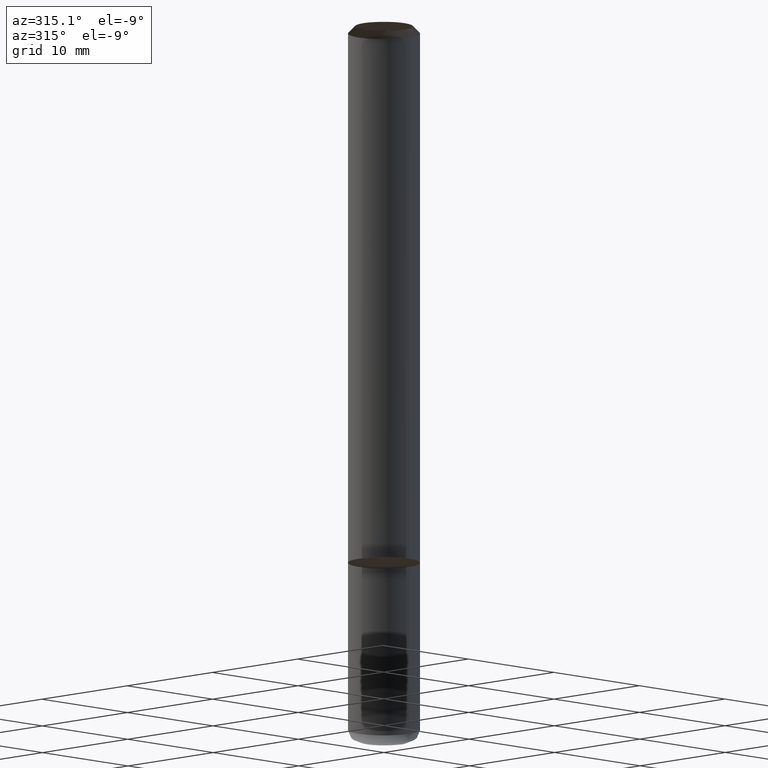
[diagram: clean part render]
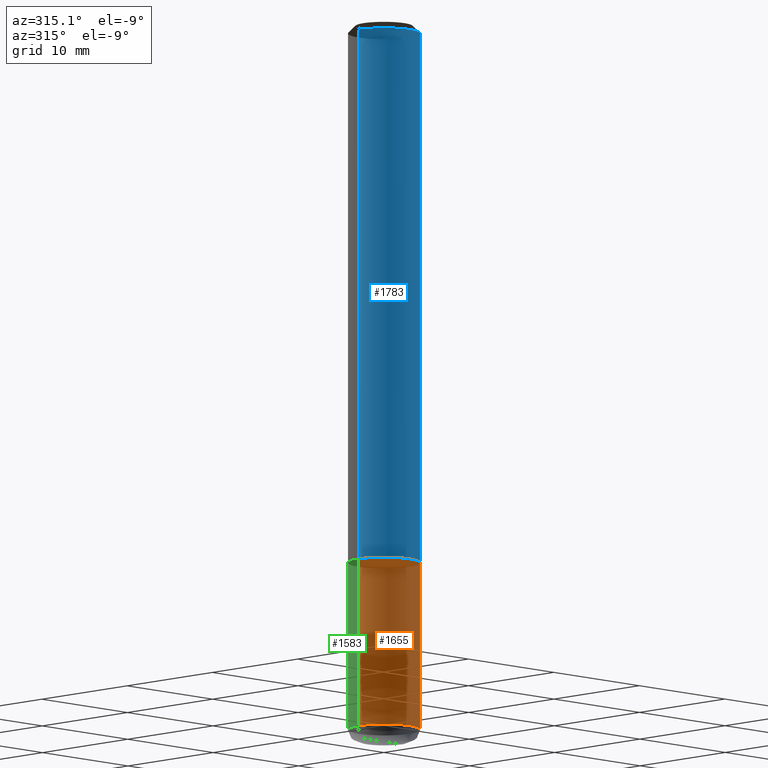
[diagram: same view with three faces highlighted in distinct colors, each labeled with its STEP entity id]
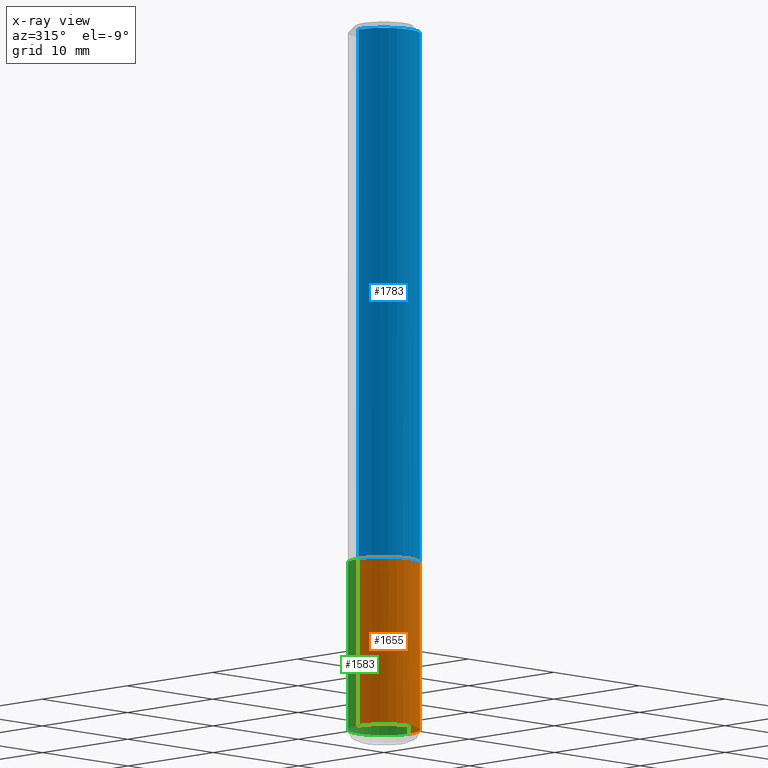
[diagram: x-ray of the same camera — body ghosted, the three highlighted faces saturated]
A machine part, auxiliary view with three faces highlighted in distinct colors.
The next image is the same camera in x-ray (body ghosted, the three faces saturated) — at least one of them is partly hidden behind the body in this view.
Their STEP definitions:

[orange] entity #1655 — the highlighted face is a freeform B-spline surface patch.
#1473=CARTESIAN_POINT('',(3.0,0.0,-14.0));
#1477=CARTESIAN_POINT('',(-3.0,0.0,-14.0));
#1478=CARTESIAN_POINT('',(3.0,0.0,0.0));
#1482=CARTESIAN_POINT('',(-3.0,0.0,0.0));
#1496=CARTESIAN_POINT('',(-3.0,-3.0,-14.0));
#1497=CARTESIAN_POINT('',(0.0,-3.0,-14.0));
#1498=CARTESIAN_POINT('',(3.0,-3.0,-14.0));
#1499=CARTESIAN_POINT('',(-3.0,-3.0,0.0));
#1500=CARTESIAN_POINT('',(0.0,-3.0,0.0));
#1501=CARTESIAN_POINT('',(3.0,-3.0,0.0));
#1636=(
BOUNDED_SURFACE()
B_SPLINE_SURFACE(1,2,(
(#1477,#1496,#1497,#1498,#1473),
(#1482,#1499,#1500,#1501,#1478)
), .UNSPECIFIED.,.F.,.F.,.F.)
B_SPLINE_SURFACE_WITH_KNOTS((2,2),(3,2,3),(
0.0,1.0),(
0.0,0.5,1.0), .UNSPECIFIED.)
GEOMETRIC_REPRESENTATION_ITEM()
RATIONAL_B_SPLINE_SURFACE(((1.0,0.707106781187,1.0,0.707106781187,1.0),
(1.0,0.707106781187,1.0,0.707106781187,1.0)
))
REPRESENTATION_ITEM('')
SURFACE()
);
#1637=(
BOUNDED_CURVE()
B_SPLINE_CURVE(1,(#1482,#1477),.UNSPECIFIED.,.F.,.F.)
B_SPLINE_CURVE_WITH_KNOTS((2,2),
(0.0,1.0),.UNSPECIFIED.)
CURVE()
GEOMETRIC_REPRESENTATION_ITEM()
RATIONAL_B_SPLINE_CURVE((1.0,1.0))
REPRESENTATION_ITEM('')
);
#1638=(
BOUNDED_CURVE()
B_SPLINE_CURVE(2,(#1477,#1496,#1497,#1498,#1473),.UNSPECIFIED.,.F.,.F.)
B_SPLINE_CURVE_WITH_KNOTS((3,2,3),
(0.0,0.5,1.0),.UNSPECIFIED.)
CURVE()
GEOMETRIC_REPRESENTATION_ITEM()
RATIONAL_B_SPLINE_CURVE((1.0,0.707106781187,1.0,0.707106781187,1.0))
REPRESENTATION_ITEM('')
);
#1639=(
BOUNDED_CURVE()
B_SPLINE_CURVE(1,(#1473,#1478),.UNSPECIFIED.,.F.,.F.)
B_SPLINE_CURVE_WITH_KNOTS((2,2),
(0.0,1.0),.UNSPECIFIED.)
CURVE()
GEOMETRIC_REPRESENTATION_ITEM()
RATIONAL_B_SPLINE_CURVE((1.0,1.0))
REPRESENTATION_ITEM('')
);
#1640=(
BOUNDED_CURVE()
B_SPLINE_CURVE(2,(#1478,#1501,#1500,#1499,#1482),.UNSPECIFIED.,.F.,.F.)
B_SPLINE_CURVE_WITH_KNOTS((3,2,3),
(0.0,0.5,1.0),.UNSPECIFIED.)
CURVE()
GEOMETRIC_REPRESENTATION_ITEM()
RATIONAL_B_SPLINE_CURVE((1.0,0.707106781187,1.0,0.707106781187,1.0))
REPRESENTATION_ITEM('')
);
#1641=VERTEX_POINT('',#1473);
#1642=VERTEX_POINT('',#1477);
#1643=VERTEX_POINT('',#1478);
#1644=VERTEX_POINT('',#1482);
#1645=EDGE_CURVE('',#1644,#1642,#1637,.T.);
#1646=EDGE_CURVE('',#1642,#1641,#1638,.T.);
#1647=EDGE_CURVE('',#1641,#1643,#1639,.T.);
#1648=EDGE_CURVE('',#1643,#1644,#1640,.T.);
#1649=ORIENTED_EDGE('',*,*,#1645,.T.);
#1650=ORIENTED_EDGE('',*,*,#1646,.T.);
#1651=ORIENTED_EDGE('',*,*,#1647,.T.);
#1652=ORIENTED_EDGE('',*,*,#1648,.T.);
#1653=EDGE_LOOP('',(#1649,#1650,#1651,#1652));
#1654=FACE_OUTER_BOUND('',#1653,.T.);
#1655=ADVANCED_FACE('',(#1654),#1636,.T.);

[blue] entity #1783 — the highlighted face is a freeform B-spline surface patch.
#1478=CARTESIAN_POINT('',(3.0,0.0,0.0));
#1482=CARTESIAN_POINT('',(-3.0,0.0,0.0));
#1499=CARTESIAN_POINT('',(-3.0,-3.0,0.0));
#1500=CARTESIAN_POINT('',(0.0,-3.0,0.0));
#1501=CARTESIAN_POINT('',(3.0,-3.0,0.0));
#1502=CARTESIAN_POINT('',(3.0,0.0,44.4));
#1506=CARTESIAN_POINT('',(-3.0,0.0,44.4));
#1513=CARTESIAN_POINT('',(-3.0,-3.0,44.4));
#1514=CARTESIAN_POINT('',(0.0,-3.0,44.4));
#1515=CARTESIAN_POINT('',(3.0,-3.0,44.4));
#1764=(
BOUNDED_SURFACE()
B_SPLINE_SURFACE(1,2,(
(#1482,#1499,#1500,#1501,#1478),
(#1506,#1513,#1514,#1515,#1502)
), .UNSPECIFIED.,.F.,.F.,.F.)
B_SPLINE_SURFACE_WITH_KNOTS((2,2),(3,2,3),(
0.0,1.0),(
0.0,0.5,1.0), .UNSPECIFIED.)
GEOMETRIC_REPRESENTATION_ITEM()
RATIONAL_B_SPLINE_SURFACE(((1.0,0.707106781187,1.0,0.707106781187,1.0),
(1.0,0.707106781187,1.0,0.707106781187,1.0)
))
REPRESENTATION_ITEM('')
SURFACE()
);
#1765=(
BOUNDED_CURVE()
B_SPLINE_CURVE(1,(#1506,#1482),.UNSPECIFIED.,.F.,.F.)
B_SPLINE_CURVE_WITH_KNOTS((2,2),
(0.0,1.0),.UNSPECIFIED.)
CURVE()
GEOMETRIC_REPRESENTATION_ITEM()
RATIONAL_B_SPLINE_CURVE((1.0,1.0))
REPRESENTATION_ITEM('')
);
#1766=(
BOUNDED_CURVE()
B_SPLINE_CURVE(2,(#1482,#1499,#1500,#1501,#1478),.UNSPECIFIED.,.F.,.F.)
B_SPLINE_CURVE_WITH_KNOTS((3,2,3),
(0.0,0.5,1.0),.UNSPECIFIED.)
CURVE()
GEOMETRIC_REPRESENTATION_ITEM()
RATIONAL_B_SPLINE_CURVE((1.0,0.707106781187,1.0,0.707106781187,1.0))
REPRESENTATION_ITEM('')
);
#1767=(
BOUNDED_CURVE()
B_SPLINE_CURVE(1,(#1478,#1502),.UNSPECIFIED.,.F.,.F.)
B_SPLINE_CURVE_WITH_KNOTS((2,2),
(0.0,1.0),.UNSPECIFIED.)
CURVE()
GEOMETRIC_REPRESENTATION_ITEM()
RATIONAL_B_SPLINE_CURVE((1.0,1.0))
REPRESENTATION_ITEM('')
);
#1768=(
BOUNDED_CURVE()
B_SPLINE_CURVE(2,(#1502,#1515,#1514,#1513,#1506),.UNSPECIFIED.,.F.,.F.)
B_SPLINE_CURVE_WITH_KNOTS((3,2,3),
(0.0,0.5,1.0),.UNSPECIFIED.)
CURVE()
GEOMETRIC_REPRESENTATION_ITEM()
RATIONAL_B_SPLINE_CURVE((1.0,0.707106781187,1.0,0.707106781187,1.0))
REPRESENTATION_ITEM('')
);
#1769=VERTEX_POINT('',#1478);
#1770=VERTEX_POINT('',#1482);
#1771=VERTEX_POINT('',#1502);
#1772=VERTEX_POINT('',#1506);
#1773=EDGE_CURVE('',#1772,#1770,#1765,.T.);
#1774=EDGE_CURVE('',#1770,#1769,#1766,.T.);
#1775=EDGE_CURVE('',#1769,#1771,#1767,.T.);
#1776=EDGE_CURVE('',#1771,#1772,#1768,.T.);
#1777=ORIENTED_EDGE('',*,*,#1773,.T.);
#1778=ORIENTED_EDGE('',*,*,#1774,.T.);
#1779=ORIENTED_EDGE('',*,*,#1775,.T.);
#1780=ORIENTED_EDGE('',*,*,#1776,.T.);
#1781=EDGE_LOOP('',(#1777,#1778,#1779,#1780));
#1782=FACE_OUTER_BOUND('',#1781,.T.);
#1783=ADVANCED_FACE('',(#1782),#1764,.T.);

[green] entity #1583 — the highlighted face is a freeform B-spline surface patch.
#1473=CARTESIAN_POINT('',(3.0,0.0,-14.0));
#1474=CARTESIAN_POINT('',(3.0,3.0,-14.0));
#1475=CARTESIAN_POINT('',(0.0,3.0,-14.0));
#1476=CARTESIAN_POINT('',(-3.0,3.0,-14.0));
#1477=CARTESIAN_POINT('',(-3.0,0.0,-14.0));
#1478=CARTESIAN_POINT('',(3.0,0.0,0.0));
#1479=CARTESIAN_POINT('',(3.0,3.0,0.0));
#1480=CARTESIAN_POINT('',(0.0,3.0,0.0));
#1481=CARTESIAN_POINT('',(-3.0,3.0,0.0));
#1482=CARTESIAN_POINT('',(-3.0,0.0,0.0));
#1564=(
BOUNDED_SURFACE()
B_SPLINE_SURFACE(1,2,(
(#1473,#1474,#1475,#1476,#1477),
(#1478,#1479,#1480,#1481,#1482)
), .UNSPECIFIED.,.F.,.F.,.F.)
B_SPLINE_SURFACE_WITH_KNOTS((2,2),(3,2,3),(
0.0,1.0),(
0.0,0.5,1.0), .UNSPECIFIED.)
GEOMETRIC_REPRESENTATION_ITEM()
RATIONAL_B_SPLINE_SURFACE(((1.0,0.707106781187,1.0,0.707106781187,1.0),
(1.0,0.707106781187,1.0,0.707106781187,1.0)
))
REPRESENTATION_ITEM('')
SURFACE()
);
#1565=(
BOUNDED_CURVE()
B_SPLINE_CURVE(2,(#1478,#1479,#1480,#1481,#1482),.UNSPECIFIED.,.F.,.F.)
B_SPLINE_CURVE_WITH_KNOTS((3,2,3),
(0.0,0.5,1.0),.UNSPECIFIED.)
CURVE()
GEOMETRIC_REPRESENTATION_ITEM()
RATIONAL_B_SPLINE_CURVE((1.0,0.707106781187,1.0,0.707106781187,1.0))
REPRESENTATION_ITEM('')
);
#1566=(
BOUNDED_CURVE()
B_SPLINE_CURVE(1,(#1482,#1477),.UNSPECIFIED.,.F.,.F.)
B_SPLINE_CURVE_WITH_KNOTS((2,2),
(0.0,1.0),.UNSPECIFIED.)
CURVE()
GEOMETRIC_REPRESENTATION_ITEM()
RATIONAL_B_SPLINE_CURVE((1.0,1.0))
REPRESENTATION_ITEM('')
);
#1567=(
BOUNDED_CURVE()
B_SPLINE_CURVE(2,(#1477,#1476,#1475,#1474,#1473),.UNSPECIFIED.,.F.,.F.)
B_SPLINE_CURVE_WITH_KNOTS((3,2,3),
(0.0,0.5,1.0),.UNSPECIFIED.)
CURVE()
GEOMETRIC_REPRESENTATION_ITEM()
RATIONAL_B_SPLINE_CURVE((1.0,0.707106781187,1.0,0.707106781187,1.0))
REPRESENTATION_ITEM('')
);
#1568=(
BOUNDED_CURVE()
B_SPLINE_CURVE(1,(#1473,#1478),.UNSPECIFIED.,.F.,.F.)
B_SPLINE_CURVE_WITH_KNOTS((2,2),
(0.0,1.0),.UNSPECIFIED.)
CURVE()
GEOMETRIC_REPRESENTATION_ITEM()
RATIONAL_B_SPLINE_CURVE((1.0,1.0))
REPRESENTATION_ITEM('')
);
#1569=VERTEX_POINT('',#1473);
#1570=VERTEX_POINT('',#1477);
#1571=VERTEX_POINT('',#1478);
#1572=VERTEX_POINT('',#1482);
#1573=EDGE_CURVE('',#1571,#1572,#1565,.T.);
#1574=EDGE_CURVE('',#1572,#1570,#1566,.T.);
#1575=EDGE_CURVE('',#1570,#1569,#1567,.T.);
#1576=EDGE_CURVE('',#1569,#1571,#1568,.T.);
#1577=ORIENTED_EDGE('',*,*,#1573,.T.);
#1578=ORIENTED_EDGE('',*,*,#1574,.T.);
#1579=ORIENTED_EDGE('',*,*,#1575,.T.);
#1580=ORIENTED_EDGE('',*,*,#1576,.T.);
#1581=EDGE_LOOP('',(#1577,#1578,#1579,#1580));
#1582=FACE_OUTER_BOUND('',#1581,.T.);
#1583=ADVANCED_FACE('',(#1582),#1564,.T.);